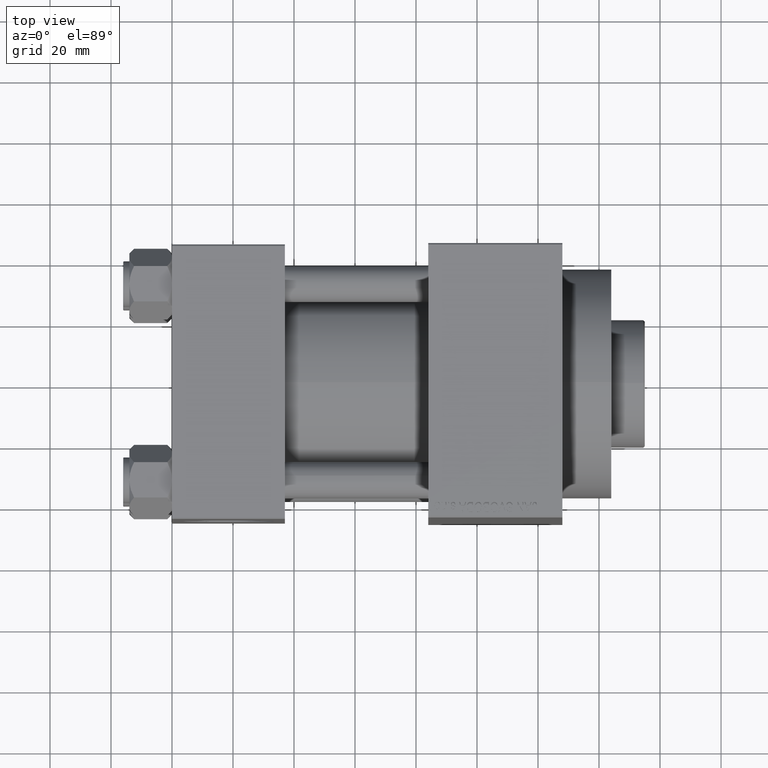
[diagram: clean part render]
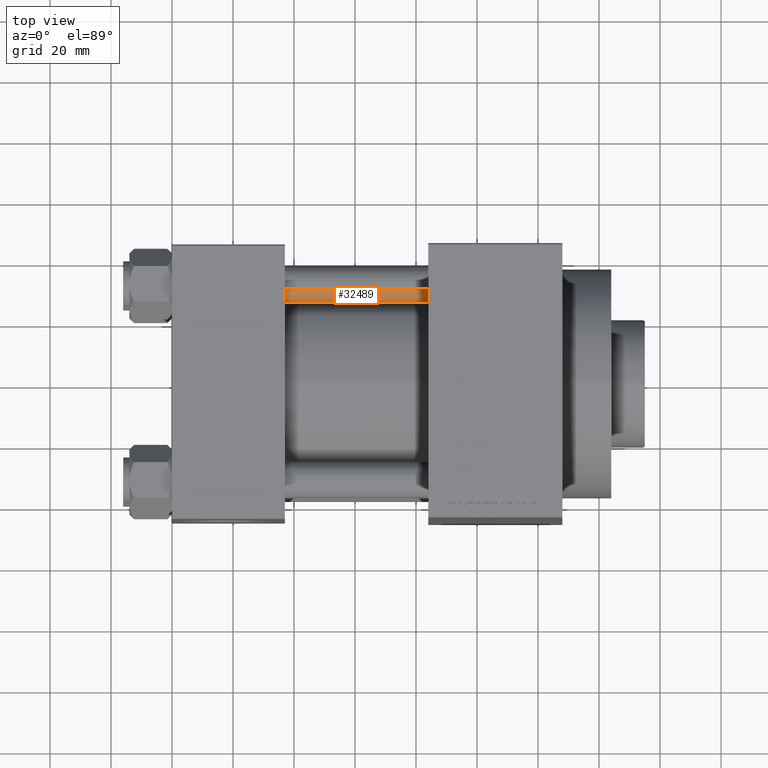
[diagram: same view with one face highlighted and labeled with its STEP entity id]
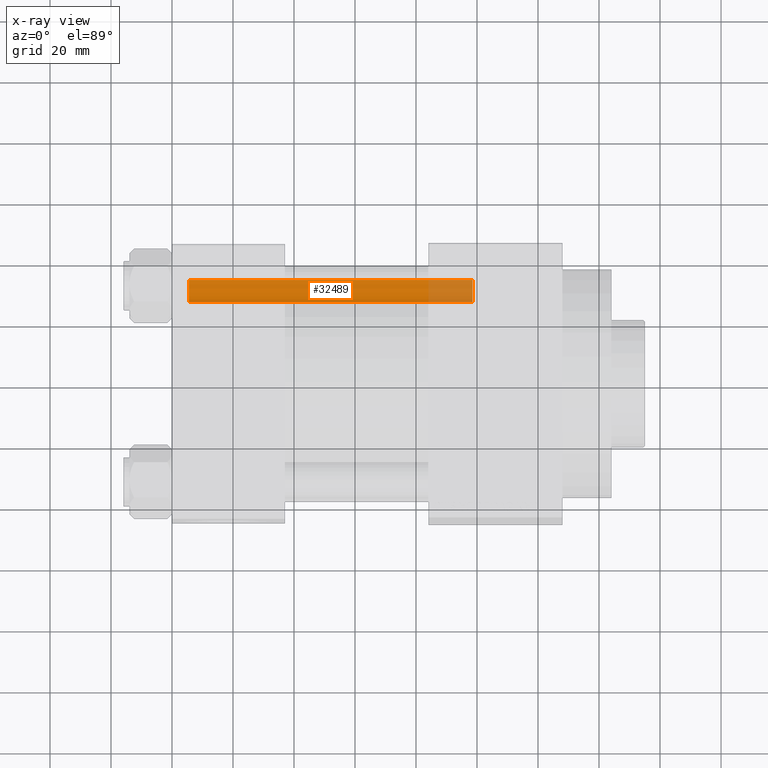
[diagram: x-ray of the same camera — body ghosted, the highlighted face saturated]
A machine part, top view. The second image highlights one B-rep face of the part: STEP entity #32489.
The next image is the same camera in x-ray: the body ghosted, the highlighted face saturated — about 16% of this face is hidden behind the body in this view.
In plain terms, the highlighted cylindrical surface (edge-blend (fillet) strip) has radius 6 mm, axis along (-1, -0, 0).
Its self-contained STEP definition (entity closure, byte-faithful):
#417 = CARTESIAN_POINT ( 'NONE',  ( 0.000000000000000000, 0.000000000000000000, 0.5000000000000281997 ) ) ;
#1318 = VERTEX_POINT ( 'NONE', #24980 ) ;
#1671 = LINE ( 'NONE', #26767, #32236 ) ;
#2215 = FACE_OUTER_BOUND ( 'NONE', #23160, .T. ) ;
#2685 = CYLINDRICAL_SURFACE ( 'NONE', #14039, 6.000000000000000888 ) ;
#5065 = ORIENTED_EDGE ( 'NONE', *, *, #38926, .T. ) ;
#5436 = VERTEX_POINT ( 'NONE', #11632 ) ;
#7767 = CIRCLE ( 'NONE', #23793, 6.000000000000000888 ) ;
#9525 = VERTEX_POINT ( 'NONE', #27098 ) ;
#11632 = CARTESIAN_POINT ( 'NONE',  ( 6.000000000000000888, 7.347880794884120722E-16, 93.49999999999998579 ) ) ;
#13655 = LINE ( 'NONE', #31325, #19332 ) ;
#14039 = AXIS2_PLACEMENT_3D ( 'NONE', #28239, #23705, #27529 ) ;
#14967 = ORIENTED_EDGE ( 'NONE', *, *, #23829, .T. ) ;
#14986 = DIRECTION ( 'NONE',  ( 1.000000000000000000, 0.000000000000000000, 0.000000000000000000 ) ) ;
#15304 = VERTEX_POINT ( 'NONE', #33783 ) ;
#18697 = ORIENTED_EDGE ( 'NONE', *, *, #39546, .T. ) ;
#19332 = VECTOR ( 'NONE', #27982, 1000.000000000000000 ) ;
#21587 = AXIS2_PLACEMENT_3D ( 'NONE', #29794, #46341, #46566 ) ;
#23160 = EDGE_LOOP ( 'NONE', ( #28270, #5065, #18697, #14967 ) ) ;
#23705 = DIRECTION ( 'NONE',  ( -0.000000000000000000, -0.000000000000000000, -1.000000000000000000 ) ) ;
#23793 = AXIS2_PLACEMENT_3D ( 'NONE', #417, #40764, #14986 ) ;
#23829 = EDGE_CURVE ( 'NONE', #9525, #1318, #7767, .T. ) ;
#24980 = CARTESIAN_POINT ( 'NONE',  ( 6.000000000000000888, 7.347880794884120722E-16, 0.5000000000000281997 ) ) ;
#26767 = CARTESIAN_POINT ( 'NONE',  ( 6.000000000000000888, 7.347880794884120722E-16, 94.00000000000000000 ) ) ;
#27098 = CARTESIAN_POINT ( 'NONE',  ( -6.000000000000000888, 0.000000000000000000, 0.5000000000000281997 ) ) ;
#27529 = DIRECTION ( 'NONE',  ( -1.000000000000000000, 0.000000000000000000, 0.000000000000000000 ) ) ;
#27982 = DIRECTION ( 'NONE',  ( -0.000000000000000000, -0.000000000000000000, -1.000000000000000000 ) ) ;
#28239 = CARTESIAN_POINT ( 'NONE',  ( 0.000000000000000000, 0.000000000000000000, 94.00000000000000000 ) ) ;
#28270 = ORIENTED_EDGE ( 'NONE', *, *, #29445, .F. ) ;
#29445 = EDGE_CURVE ( 'NONE', #5436, #1318, #1671, .T. ) ;
#29794 = CARTESIAN_POINT ( 'NONE',  ( 0.000000000000000000, 0.000000000000000000, 93.49999999999998579 ) ) ;
#31325 = CARTESIAN_POINT ( 'NONE',  ( -6.000000000000000888, 0.000000000000000000, 94.00000000000000000 ) ) ;
#32236 = VECTOR ( 'NONE', #37742, 1000.000000000000000 ) ;
#32489 = ADVANCED_FACE ( 'NONE', ( #2215 ), #2685, .T. ) ;
#33783 = CARTESIAN_POINT ( 'NONE',  ( -6.000000000000000888, 0.000000000000000000, 93.49999999999998579 ) ) ;
#36067 = CIRCLE ( 'NONE', #21587, 6.000000000000000888 ) ;
#37742 = DIRECTION ( 'NONE',  ( -0.000000000000000000, -0.000000000000000000, -1.000000000000000000 ) ) ;
#38926 = EDGE_CURVE ( 'NONE', #5436, #15304, #36067, .T. ) ;
#39546 = EDGE_CURVE ( 'NONE', #15304, #9525, #13655, .T. ) ;
#40764 = DIRECTION ( 'NONE',  ( -0.000000000000000000, -0.000000000000000000, 1.000000000000000000 ) ) ;
#46341 = DIRECTION ( 'NONE',  ( 0.000000000000000000, 0.000000000000000000, -1.000000000000000000 ) ) ;
#46566 = DIRECTION ( 'NONE',  ( 1.000000000000000000, 0.000000000000000000, 0.000000000000000000 ) ) ;